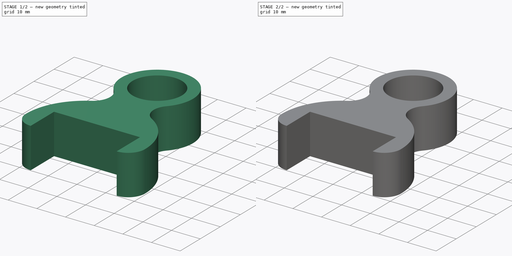
[diagram: build sequence overview — one tinted view per stage of 2, left to right]
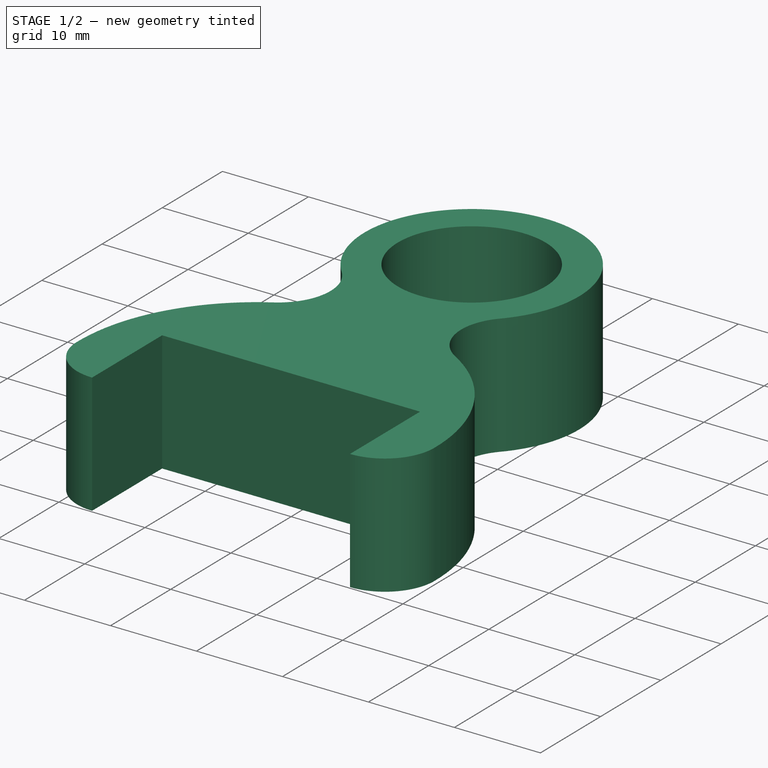
[diagram: stage 1 of 2 — iso view after this stage's code; geometry added in this stage tinted green]
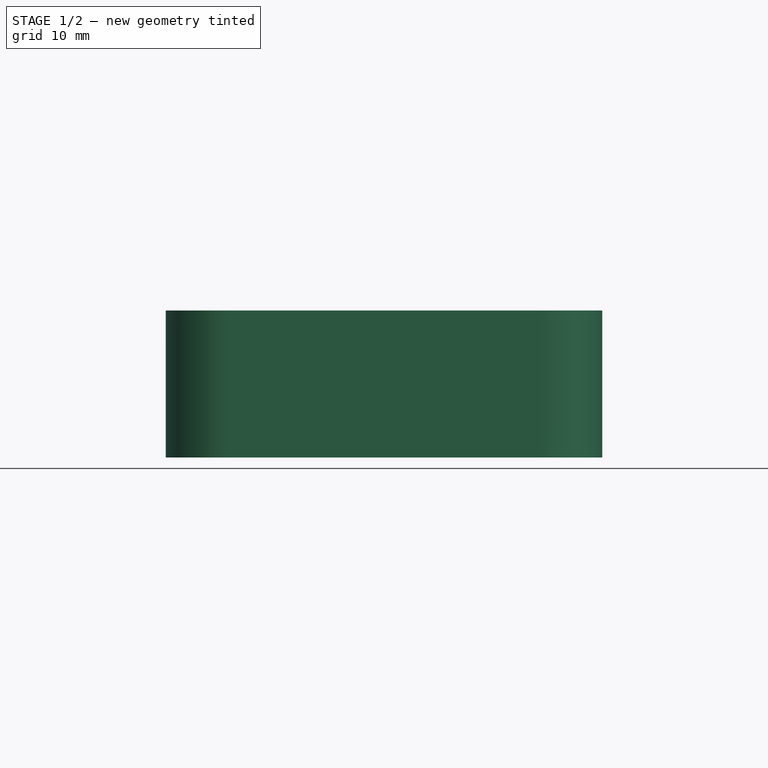
[diagram: stage 1 of 2 — front view after this stage's code; geometry added in this stage tinted green]
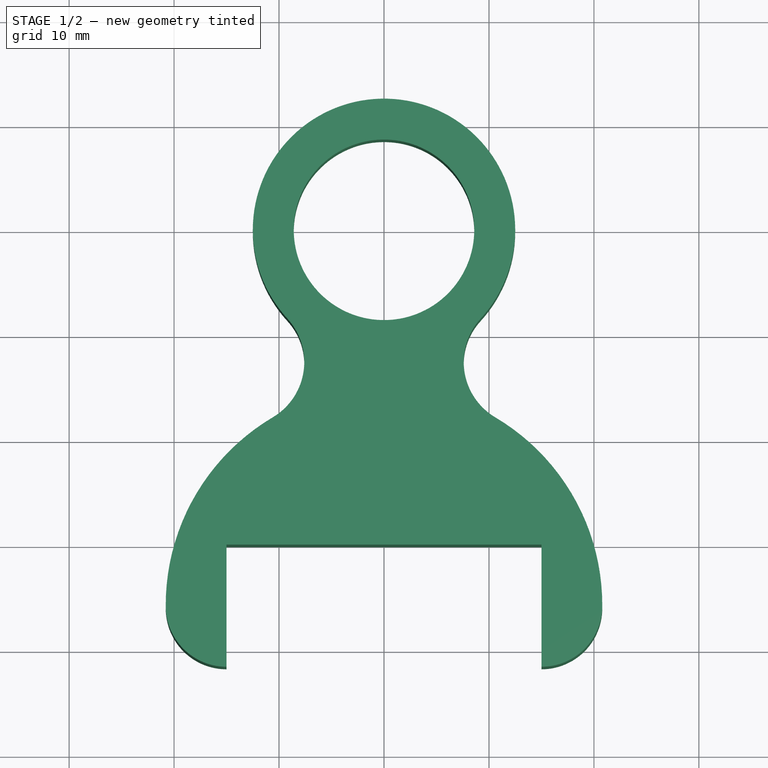
[diagram: stage 1 of 2 — top view after this stage's code; geometry added in this stage tinted green]
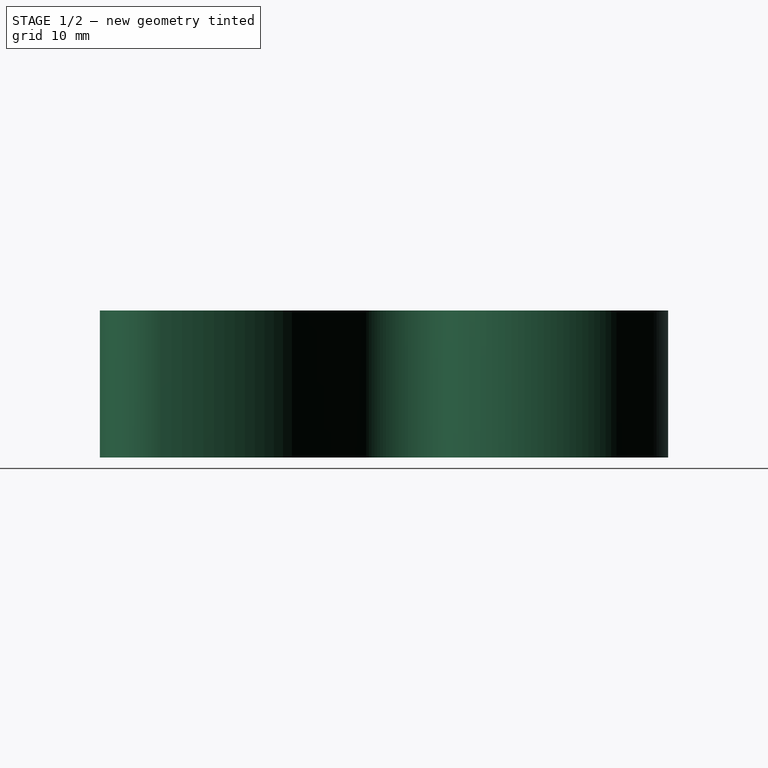
[diagram: stage 1 of 2 — right view after this stage's code; geometry added in this stage tinted green]
FCSTD DOCUMENT  (FreeCAD 0.19R24291 (Git))
Label: unten
License: All rights reserved
LicenseURL: http://en.wikipedia.org/wiki/All_rights_reserved
objects: Sketcher::SketchObject×2, PartDesign::Pad×1, PartDesign::Pocket×1, PartDesign::Body×1
note: 7 computed .brp shape members not serialized (recipe doc carries the construction recipe); baked Part::Feature solids carry a one-line shape summary decoded from their .brp

FEATURE [Sketcher::SketchObject] Sketch
  FullyConstrained = false
  MapMode = 5
  Support = -> [XY_Plane]
  sketch-geometry (12):
    g0: Circle CenterX=0 CenterY=0 CenterZ=0 NormalX=0 NormalY=0 NormalZ=1 AngleXU=0 Radius=8.6
    g1: ArcOfCircle CenterX=0 CenterY=0 CenterZ=0 NormalX=0 NormalY=0 NormalZ=1 AngleXU=0 Radius=12.5 StartAngle=5.54048 EndAngle=10.1675
    g2: ArcOfCircle CenterX=13.7194 CenterY=-12.5951 CenterZ=0 NormalX=0 NormalY=0 NormalZ=1 AngleXU=0 Radius=6.12414 StartAngle=2.39889 EndAngle=4.1776
    g3: ArcOfCircle CenterX=-13.7194 CenterY=-12.5951 CenterZ=0 NormalX=0 NormalY=0 NormalZ=1 AngleXU=0 Radius=6.12414 StartAngle=5.24718 EndAngle=7.02589
    g4: ArcOfCircle CenterX=0 CenterY=-35.7554 CenterZ=0 NormalX=0 NormalY=0 NormalZ=1 AngleXU=0 Radius=20.7946 StartAngle=2.10558 EndAngle=3.14719
    g5: ArcOfCircle CenterX=-15 CenterY=-35.8394 CenterZ=0 NormalX=0 NormalY=0 NormalZ=1 AngleXU=0 Radius=5.79436 StartAngle=3.14719 EndAngle=4.71239
    g6: LineSegment StartX=-15 StartY=-41.6338 StartZ=0 EndX=-15 EndY=-30 EndZ=0
    g7: LineSegment StartX=-15 StartY=-30 StartZ=0 EndX=15 EndY=-30 EndZ=0
    g8: LineSegment StartX=15 StartY=-30 StartZ=0 EndX=15 EndY=-41.6338 EndZ=0
    g9: ArcOfCircle CenterX=15 CenterY=-35.8394 CenterZ=0 NormalX=0 NormalY=0 NormalZ=1 AngleXU=0 Radius=5.79436 StartAngle=4.71239 EndAngle=6.27758
    g10: ArcOfCircle CenterX=0 CenterY=-35.7554 CenterZ=0 NormalX=0 NormalY=0 NormalZ=1 AngleXU=0 Radius=20.7946 StartAngle=6.27758 EndAngle=7.31919
    g11: Circle CenterX=0 CenterY=-35.7554 CenterZ=0 NormalX=0 NormalY=0 NormalZ=1 AngleXU=0 Radius=20.7946
  constraints (26):
    c: Coincident(g0,g-1)
    c: Diameter(g0) = 17.2
    c: Coincident(g1,g0)
    c: Diameter(g1) = 25
    c: Tangent(g3,g1) = 1.5708
    c: Tangent(g2,g1) = 1.5708
    c: Symmetric(g2,g3,g-2)
    c: Coincident(g6,g5)
    c: Vertical(g6)
    c: Tangent(g5,g4) = -1.5708
    c: PointOnObject(g5,g6)
    c: Tangent(g4,g3) = 1.5708
    c: Coincident(g7,g6)
    c: Coincident(g8,g7)
    c: DistanceX(g6,g7) = 30
    c: Symmetric(g6,g7,g-2)
    c: Coincident(g9,g8)
    c: PointOnObject(g9,g8)
    c: Symmetric(g8,g5,g-2)
    c: Tangent(g9,g10) = -1.5708
    c: Tangent(g10,g2) = 1.5708
    c: DistanceY(g7,g-1) = 30
    c: PointOnObject(g10,g-2)
    c: Coincident(g4,g10)
    c: Coincident(g11,g4)
    c: PointOnObject(g3,g11)
FEATURE [PartDesign::Pad] Pad
  Direction = (1,1,1)
  Length = 14
  Length2 = 100
  Midplane = true
  Profile = -> Sketch
  Type = 0
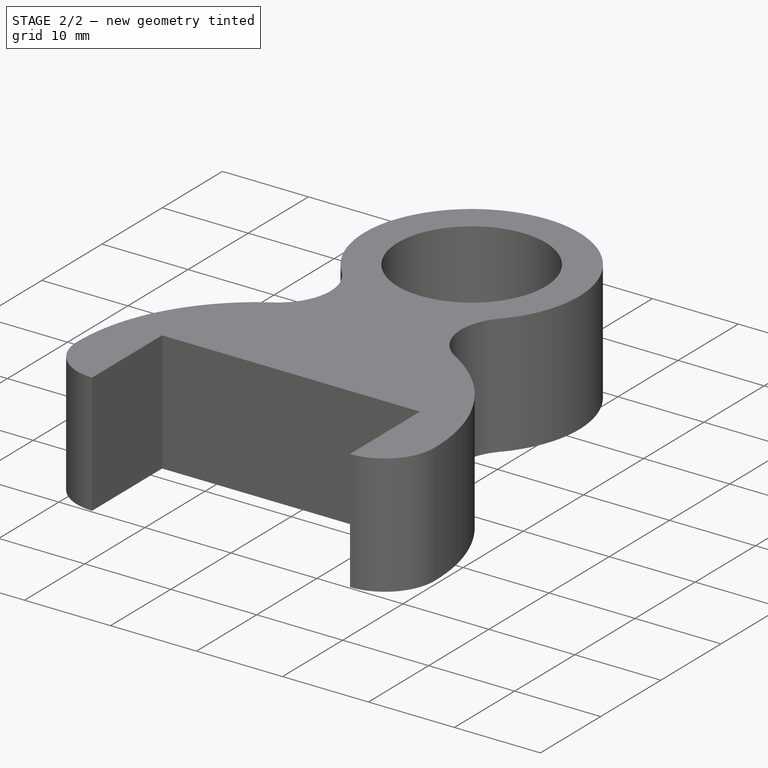
[diagram: stage 2 of 2 — iso view after this stage's code; geometry added in this stage tinted green]
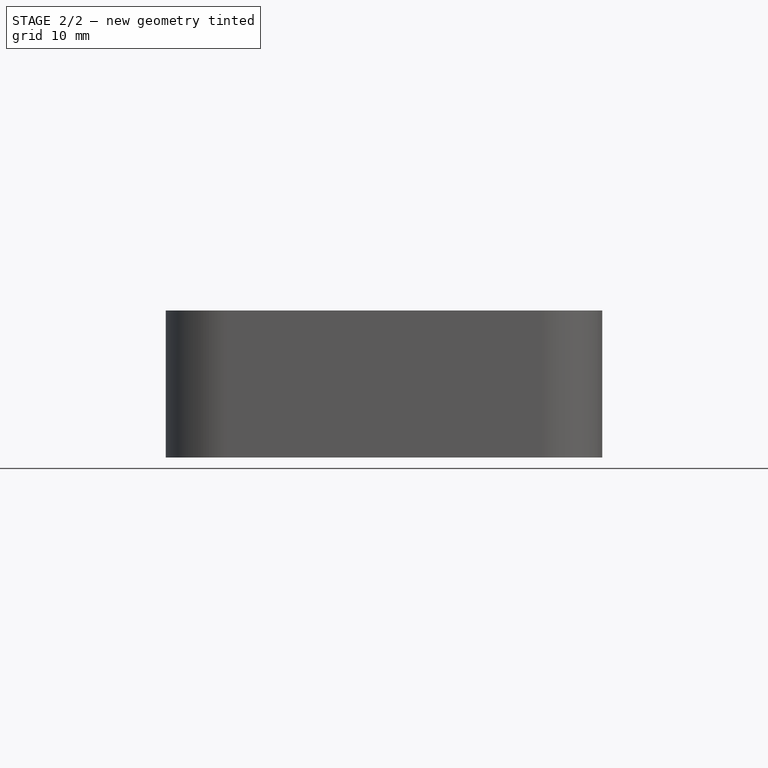
[diagram: stage 2 of 2 — front view after this stage's code; geometry added in this stage tinted green]
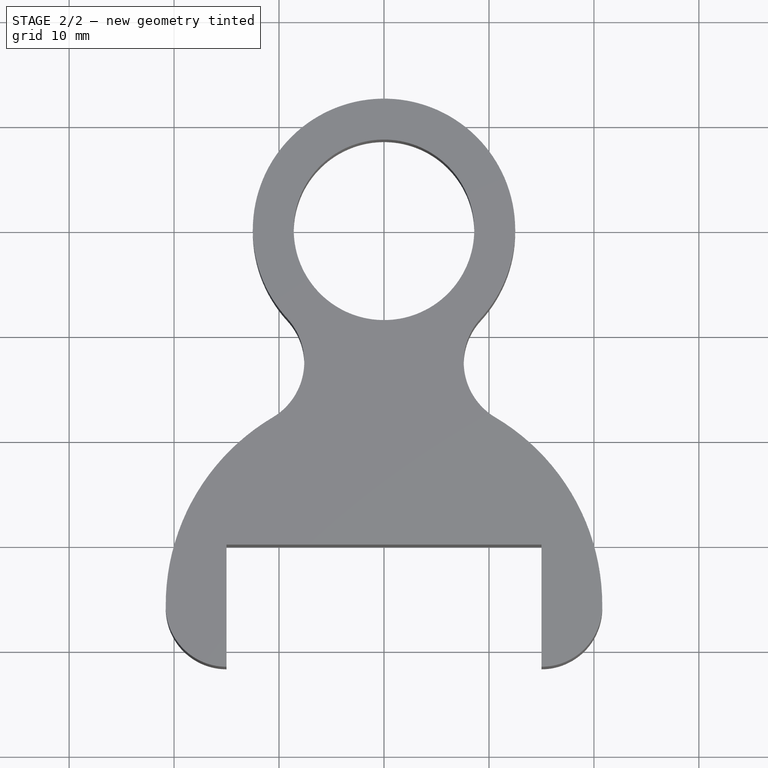
[diagram: stage 2 of 2 — top view after this stage's code; geometry added in this stage tinted green]
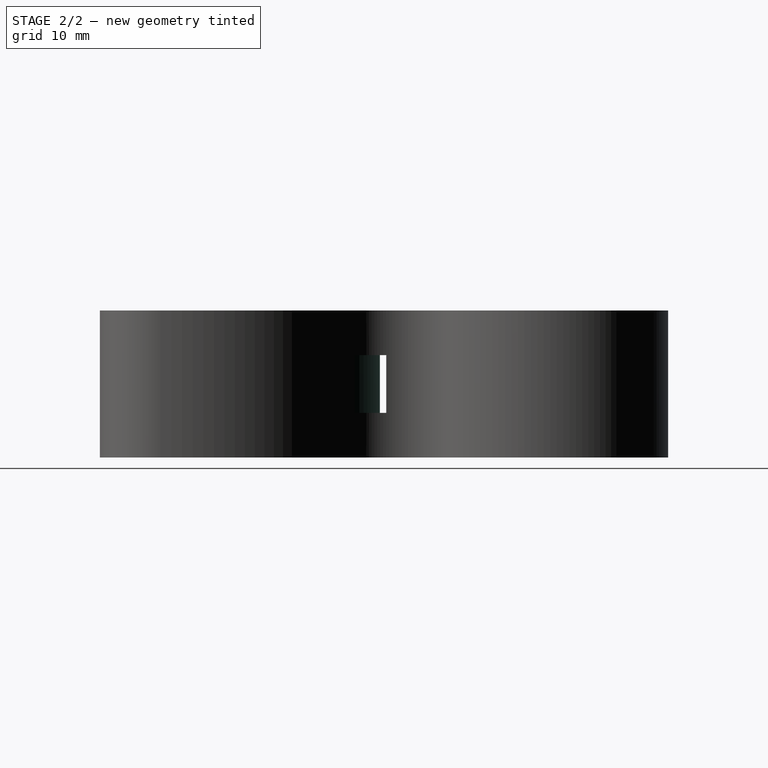
[diagram: stage 2 of 2 — right view after this stage's code; geometry added in this stage tinted green]
FEATURE [Sketcher::SketchObject] Sketch001
  ExternalGeometry = -> [Sketch]
  FullyConstrained = true
  MapMode = 5
  Support = -> [XY_Plane]
  sketch-geometry (4):
    g0: ArcOfCircle CenterX=0 CenterY=-35.7554 CenterZ=0 NormalX=0 NormalY=0 NormalZ=1 AngleXU=0 Radius=20.7946 StartAngle=1.03601 EndAngle=2.10558
    g1: ArcOfCircle CenterX=0 CenterY=-35.7554 CenterZ=0 NormalX=0 NormalY=0 NormalZ=1 AngleXU=0 Radius=22.7946 StartAngle=1.03601 EndAngle=2.10558
    g2: LineSegment StartX=-11.6175 StartY=-16.1434 StartZ=0 EndX=-10.5982 EndY=-17.8642 EndZ=0
    g3: LineSegment StartX=11.6175 StartY=-16.1434 StartZ=0 EndX=10.5982 EndY=-17.8642 EndZ=0
  constraints (11):
    c: Coincident(g0,g-4)
    c: Coincident(g0,g-3)
    c: Coincident(g0,g-4)
    c: Coincident(g1,g0)
    c: Coincident(g2,g1)
    c: Coincident(g2,g0)
    c: Coincident(g3,g1)
    c: Coincident(g3,g0)
    c: Perpendicular(g1,g3)
    c: Perpendicular(g1,g2)
    c: Distance(g3) = 2
FEATURE [PartDesign::Pocket] Pocket
  BaseFeature = -> Pad
  Length = 5.5
  Length2 = 100
  Midplane = true
  Profile = -> Sketch001
  Type = 0
FEATURE [PartDesign::Body] Body
  Group = -> [Sketch,Pad,Sketch001,Pocket]
  Origin = -> Origin
  Tip = -> Pocket
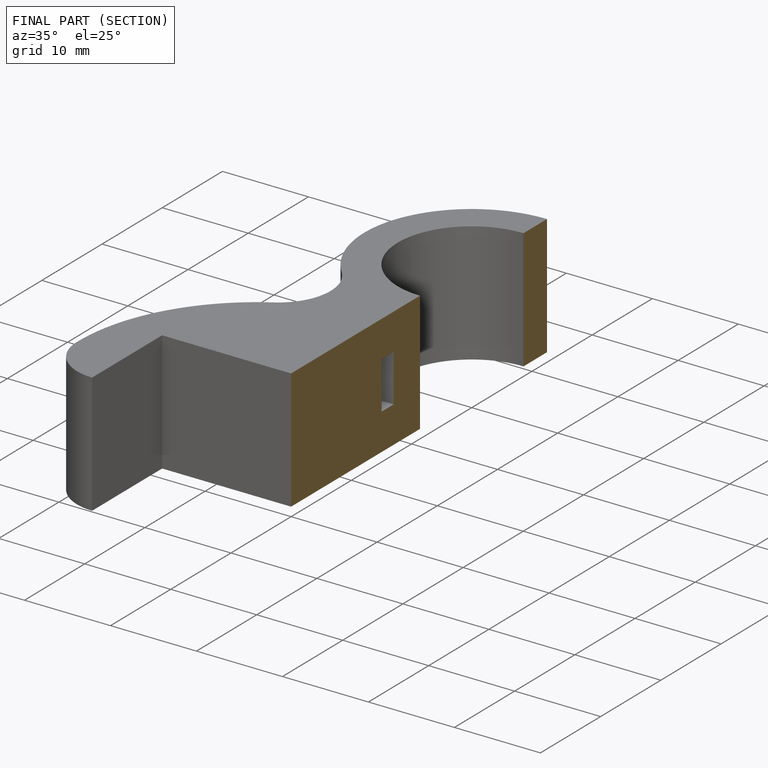
[diagram: finished part — half-section view (interior)]
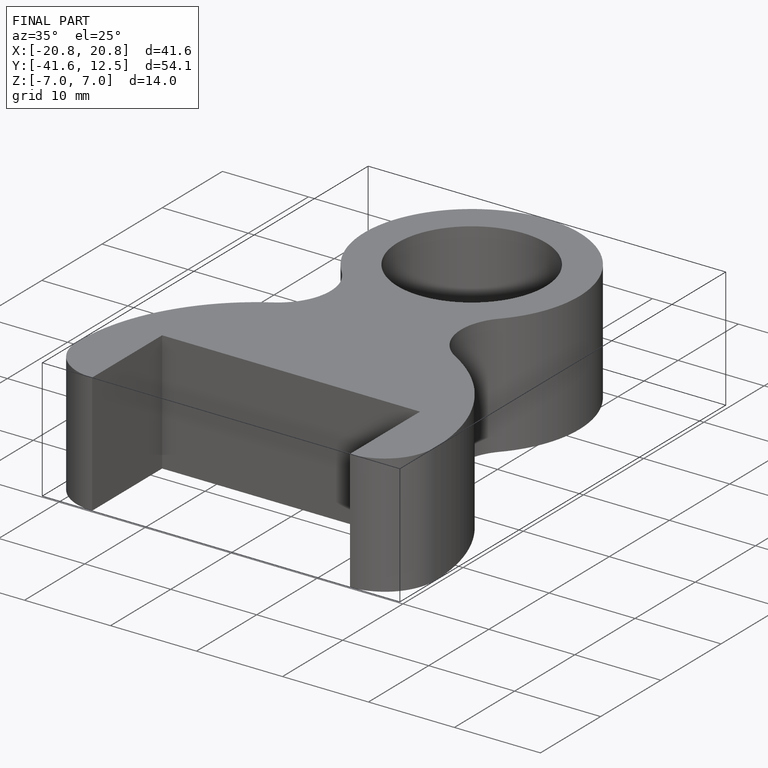
[diagram: finished part — iso view with bounding-box wireframe]
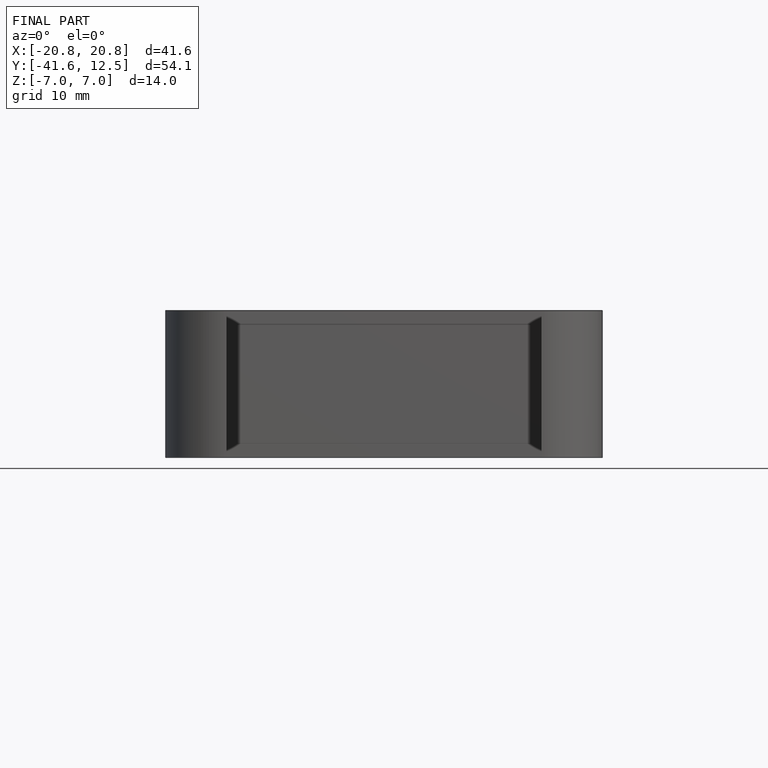
[diagram: finished part — front view with bounding-box wireframe]
